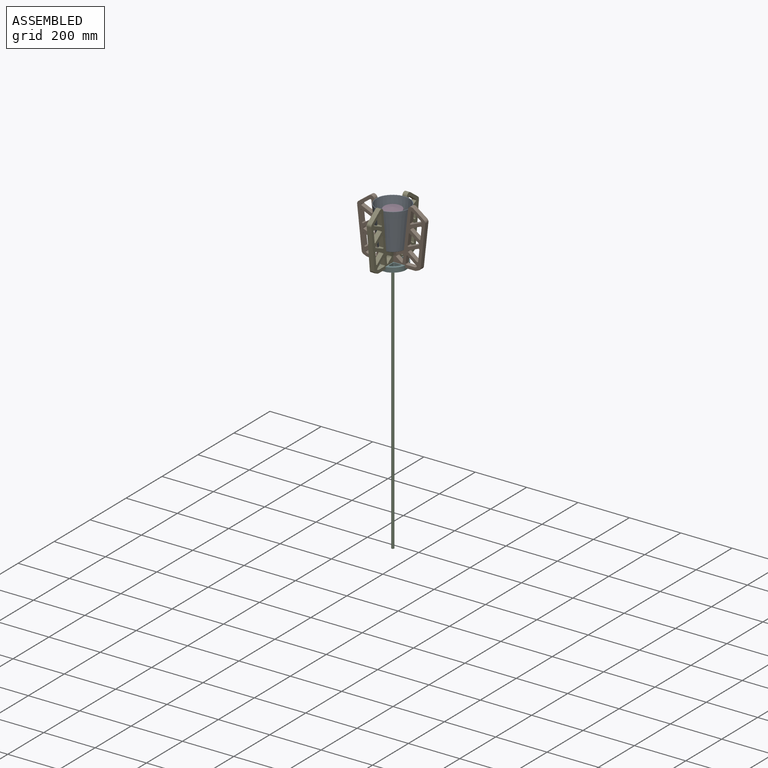
[diagram: assembled view]
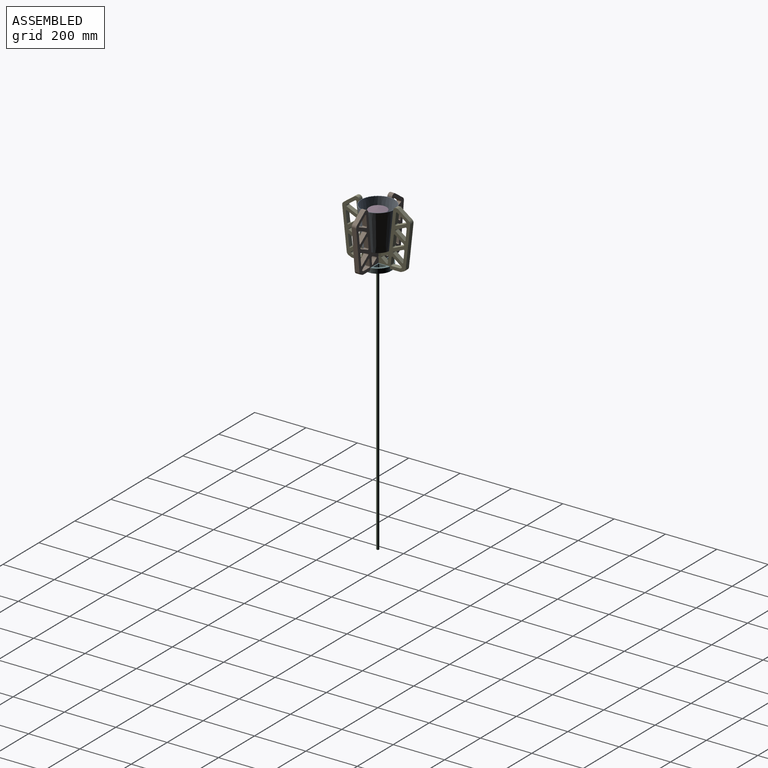
[diagram: assembled view, second angle]
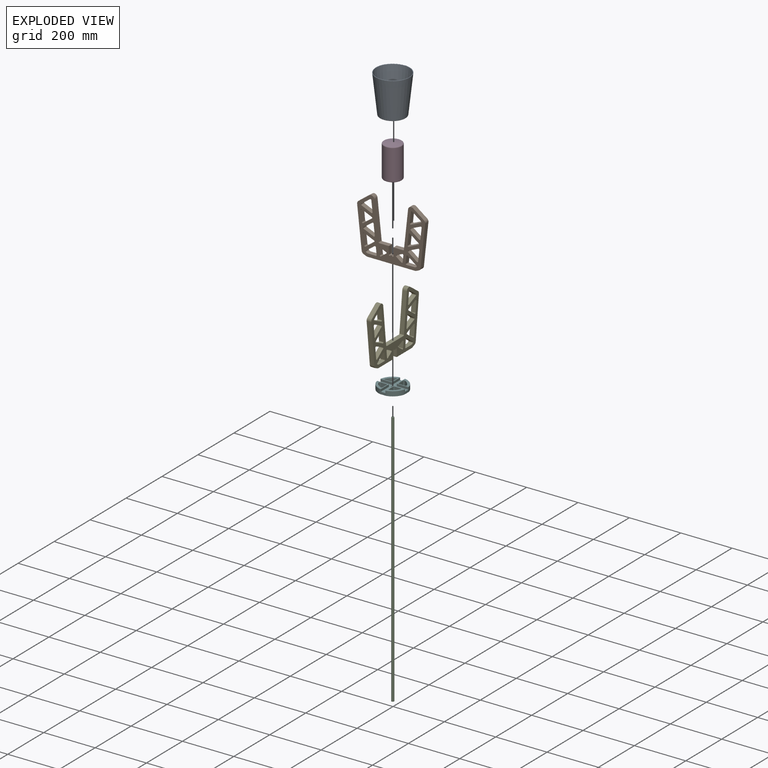
[diagram: exploded view]
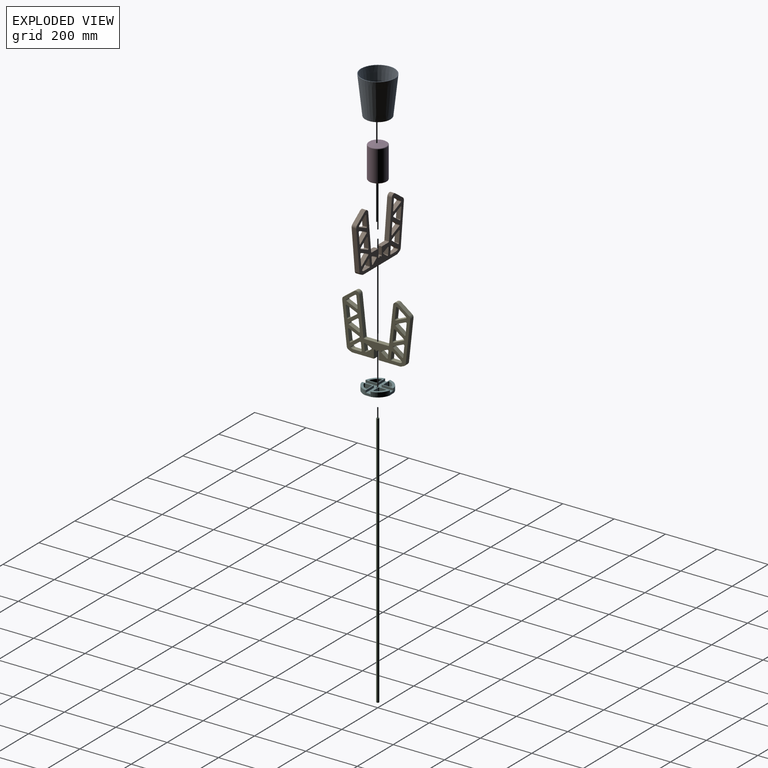
[diagram: exploded view, second angle]
ASSEMBLY  parts=6 mates=8
PART A: 7 faces, bbox 142.5x142.5x149.5 mm
  f0: plane 96.31x96.31mm, normal (0,0,-1), area 7285.3mm2, adj f5
  f1: plane 93.94x93.94mm, normal (0,0,1), area 6930.4mm2, adj f4
  f2: cone r=63.99mm half-angle=6.3deg, axis (0,0,1), area 49618.6mm2, adj f4,f6
  f3: cone r=49.5mm half-angle=6.3deg, axis (0,0,1), area 53679.1mm2, adj f5,f6
  f4: torus R=46.97mm, axis (0,0,-1), area 659.5mm2, adj f1,f2
  f5: torus R=48.16mm, axis (0,0,1), area 675.8mm2, adj f0,f3
  f6: torus R=64.82mm, axis (0,0,-1), area 1280.9mm2, adj f2,f3
PART B: 106 faces, bbox 265.2x18x220.5 mm
  f0: plane 37.23x18mm, normal (0,0,1), area 670.1mm2, adj f1,f27,f96,f101
  f1: plane 265.23x220.48mm, normal (0,-1,0), area 21184.4mm2, adj f0,f2,f3,f4,f5,f6,f7,f8
  f2: plane 41.61x18mm, normal (0.99,0,-0.11), area 753.4mm2, adj f1,f27,f45,f47
  f3: plane 33.75x24.76mm, normal (-0.59,0,-0.81), area 753.4mm2, adj f1,f27,f45,f46
  f4: plane 33.75x24.76mm, normal (0.59,0,0.81), area 753.4mm2, adj f1,f27,f42,f44
  f5: plane 38.32x18mm, normal (0.4,0,-0.92), area 753.4mm2, adj f1,f27,f42,f43
  f6: plane 41.61x18mm, normal (0.99,0,-0.11), area 753.4mm2, adj f1,f27,f39,f41
  f7: plane 33.75x24.76mm, normal (-0.59,0,-0.81), area 753.4mm2, adj f1,f27,f39,f40
  f8: plane 33.75x24.76mm, normal (0.59,0,0.81), area 753.4mm2, adj f1,f27,f36,f38
  f9: plane 38.32x18mm, normal (0.4,0,-0.92), area 753.4mm2, adj f1,f27,f36,f37
  f10: plane 26.8x18mm, normal (0.99,0,-0.11), area 485.3mm2, adj f1,f27,f32,f35
  f11: plane 33.75x24.76mm, normal (-0.59,0,-0.81), area 753.4mm2, adj f1,f27,f32,f33
  f12: plane 18x4.63mm, normal (-0.4,0,0.92), area 91mm2, adj f1,f27,f33,f34
  f13: plane 22.98x18mm, normal (0.4,0,-0.92), area 451.7mm2, adj f1,f27,f28,f30
  f14: plane 24.81x18mm, normal (-0.99,0,0.11), area 449.3mm2, adj f1,f27,f28,f29
  f15: plane 20.25x18mm, normal (0.59,0,0.81), area 452.1mm2, adj f1,f27,f29,f31
  f16: plane 146.68x18mm, normal (-0.99,0,0.11), area 2656.1mm2, adj f1,f27,f48,f52
  f17: plane 37.23x18mm, normal (0,0,1), area 670.1mm2, adj f1,f27,f48,f102
  f18: plane 185.01x18mm, normal (0,0,-1), area 3330.2mm2, adj f1,f27,f49,f97
  f19: plane 18x10.23mm, normal (0.4,0,-0.92), area 201.1mm2, adj f1,f27,f49,f50
  f20: plane 160.4x18mm, normal (0.99,0,-0.11), area 2904.6mm2, adj f1,f27,f50,f51
  f21: plane 41.61x18mm, normal (-0.99,0,0.11), area 753.4mm2, adj f1,f27,f43,f44
  f22: plane 38.32x18mm, normal (-0.4,0,0.92), area 753.4mm2, adj f1,f27,f40,f41
  f23: plane 41.61x18mm, normal (-0.99,0,0.11), area 753.4mm2, adj f1,f27,f37,f38
  f24: plane 32.06x18mm, normal (0,0,1), area 577.1mm2, adj f1,f27,f34,f35
  f25: plane 42.36x31.08mm, normal (0.59,0,0.81), area 945.7mm2, adj f1,f27,f51,f52
  f26: plane 38.32x18mm, normal (-0.4,0,0.92), area 753.4mm2, adj f1,f27,f46,f47
  f27: plane 265.23x220.48mm, normal (0,1,0), area 21184.4mm2, adj f0,f2,f3,f4,f5,f6,f7,f8
  f28: cylinder r=3.25mm len=18mm, axis (0,1,0), area 122.5mm2, adj f1,f13,f14,f27
  f29: cylinder r=3.25mm len=18mm, axis (0,-1,0), area 122.5mm2, adj f1,f14,f15,f27
  f30: cylinder r=3.25mm len=18mm, axis (0,-1,0), area 66.3mm2, adj f1,f13,f27,f31
  f31: cylinder r=3.25mm len=18mm, axis (0,1,0), area 53.5mm2, adj f1,f15,f27,f30
  f32: cylinder r=3.25mm len=18mm, axis (0,-1,0), area 122.5mm2, adj f1,f10,f11,f27
  f33: cylinder r=3.25mm len=18mm, axis (0,-1,0), area 122.5mm2, adj f1,f11,f12,f27
  f34: cylinder r=3.25mm len=18mm, axis (0,-1,0), area 24.2mm2, adj f1,f12,f24,f27
  f35: cylinder r=3.25mm len=18mm, axis (0,-1,0), area 98.3mm2, adj f1,f10,f24,f27
  f36: cylinder r=3.25mm len=18mm, axis (0,-1,0), area 122.5mm2, adj f1,f8,f9,f27
  f37: cylinder r=3.25mm len=18mm, axis (0,-1,0), area 122.5mm2, adj f1,f9,f23,f27
  f38: cylinder r=3.25mm len=18mm, axis (0,-1,0), area 122.5mm2, adj f1,f8,f23,f27
  f39: cylinder r=3.25mm len=18mm, axis (0,-1,0), area 122.5mm2, adj f1,f6,f7,f27
  f40: cylinder r=3.25mm len=18mm, axis (0,-1,0), area 122.5mm2, adj f1,f7,f22,f27
  f41: cylinder r=3.25mm len=18mm, axis (0,-1,0), area 122.5mm2, adj f1,f6,f22,f27
  f42: cylinder r=3.25mm len=18mm, axis (0,-1,0), area 122.5mm2, adj f1,f4,f5,f27
  f43: cylinder r=3.25mm len=18mm, axis (0,-1,0), area 122.5mm2, adj f1,f5,f21,f27
  f44: cylinder r=3.25mm len=18mm, axis (0,-1,0), area 122.5mm2, adj f1,f4,f21,f27
  f45: cylinder r=3.25mm len=18mm, axis (0,-1,0), area 122.5mm2, adj f1,f2,f3,f27
  f46: cylinder r=3.25mm len=18mm, axis (0,-1,0), area 122.5mm2, adj f1,f3,f26,f27
  f47: cylinder r=3.25mm len=18mm, axis (0,-1,0), area 122.5mm2, adj f1,f2,f26,f27
  f48: cylinder r=3.25mm len=18mm, axis (0,-1,0), area 85.5mm2, adj f1,f16,f17,f27
  f49: cylinder r=12.25mm len=18mm, axis (0,1,0), area 91.3mm2, adj f1,f18,f19,f27
  f50: cylinder r=12.25mm len=18mm, axis (0,1,0), area 230.9mm2, adj f1,f19,f20,f27
  f51: cylinder r=12.25mm len=18mm, axis (0,1,0), area 230.9mm2, adj f1,f20,f25,f27
  f52: cylinder r=12.25mm len=19.42mm, axis (0,1,0), area 461.8mm2, adj f1,f16,f25,f27
  f53: plane 41.61x18mm, normal (-0.99,0,-0.11), area 753.4mm2, adj f1,f27,f93,f95
  f54: plane 33.75x24.76mm, normal (0.59,0,-0.81), area 753.4mm2, adj f1,f27,f93,f94
  f55: plane 33.75x24.76mm, normal (-0.59,0,0.81), area 753.4mm2, adj f1,f27,f90,f92
  f56: plane 38.32x18mm, normal (-0.4,0,-0.92), area 753.4mm2, adj f1,f27,f90,f91
  f57: plane 41.61x18mm, normal (-0.99,0,-0.11), area 753.4mm2, adj f1,f27,f87,f89
  f58: plane 33.75x24.76mm, normal (0.59,0,-0.81), area 753.4mm2, adj f1,f27,f87,f88
  f59: plane 33.75x24.76mm, normal (-0.59,0,0.81), area 753.4mm2, adj f1,f27,f84,f86
  f60: plane 38.32x18mm, normal (-0.4,0,-0.92), area 753.4mm2, adj f1,f27,f84,f85
  f61: plane 26.8x18mm, normal (-0.99,0,-0.11), area 485.3mm2, adj f1,f27,f80,f83
  f62: plane 33.75x24.76mm, normal (0.59,0,-0.81), area 753.4mm2, adj f1,f27,f80,f81
  f63: plane 18x4.63mm, normal (0.4,0,0.92), area 91mm2, adj f1,f27,f81,f82
  f64: plane 22.98x18mm, normal (-0.4,0,-0.92), area 451.7mm2, adj f1,f27,f76,f78
  f65: plane 24.81x18mm, normal (0.99,0,0.11), area 449.3mm2, adj f1,f27,f76,f77
  f66: plane 20.25x18mm, normal (-0.59,0,0.81), area 452.1mm2, adj f1,f27,f77,f79
  f67: plane 146.68x18mm, normal (0.99,0,0.11), area 2656.1mm2, adj f1,f27,f96,f100
  f68: plane 18x10.23mm, normal (-0.4,0,-0.92), area 201.1mm2, adj f1,f27,f97,f98
  f69: plane 160.4x18mm, normal (-0.99,0,-0.11), area 2904.6mm2, adj f1,f27,f98,f99
  f70: plane 41.61x18mm, normal (0.99,0,0.11), area 753.4mm2, adj f1,f27,f91,f92
  f71: plane 38.32x18mm, normal (0.4,0,0.92), area 753.4mm2, adj f1,f27,f88,f89
  f72: plane 41.61x18mm, normal (0.99,0,0.11), area 753.4mm2, adj f1,f27,f85,f86
  f73: plane 32.06x18mm, normal (0,0,1), area 577.1mm2, adj f1,f27,f82,f83
  f74: plane 42.36x31.08mm, normal (-0.59,0,0.81), area 945.7mm2, adj f1,f27,f99,f100
  f75: plane 38.32x18mm, normal (0.4,0,0.92), area 753.4mm2, adj f1,f27,f94,f95
  f76: cylinder r=3.25mm len=18mm, axis (0,1,0), area 122.5mm2, adj f1,f27,f64,f65
  f77: cylinder r=3.25mm len=18mm, axis (0,-1,0), area 122.5mm2, adj f1,f27,f65,f66
  f78: cylinder r=3.25mm len=18mm, axis (0,-1,0), area 66.3mm2, adj f1,f27,f64,f79
  f79: cylinder r=3.25mm len=18mm, axis (0,1,0), area 53.5mm2, adj f1,f27,f66,f78
  f80: cylinder r=3.25mm len=18mm, axis (0,-1,0), area 122.5mm2, adj f1,f27,f61,f62
  f81: cylinder r=3.25mm len=18mm, axis (0,-1,0), area 122.5mm2, adj f1,f27,f62,f63
  f82: cylinder r=3.25mm len=18mm, axis (0,-1,0), area 24.2mm2, adj f1,f27,f63,f73
  f83: cylinder r=3.25mm len=18mm, axis (0,-1,0), area 98.3mm2, adj f1,f27,f61,f73
  f84: cylinder r=3.25mm len=18mm, axis (0,-1,0), area 122.5mm2, adj f1,f27,f59,f60
  f85: cylinder r=3.25mm len=18mm, axis (0,-1,0), area 122.5mm2, adj f1,f27,f60,f72
  f86: cylinder r=3.25mm len=18mm, axis (0,-1,0), area 122.5mm2, adj f1,f27,f59,f72
  f87: cylinder r=3.25mm len=18mm, axis (0,-1,0), area 122.5mm2, adj f1,f27,f57,f58
  f88: cylinder r=3.25mm len=18mm, axis (0,-1,0), area 122.5mm2, adj f1,f27,f58,f71
  f89: cylinder r=3.25mm len=18mm, axis (0,-1,0), area 122.5mm2, adj f1,f27,f57,f71
  f90: cylinder r=3.25mm len=18mm, axis (0,-1,0), area 122.5mm2, adj f1,f27,f55,f56
  f91: cylinder r=3.25mm len=18mm, axis (0,-1,0), area 122.5mm2, adj f1,f27,f56,f70
  f92: cylinder r=3.25mm len=18mm, axis (0,-1,0), area 122.5mm2, adj f1,f27,f55,f70
  f93: cylinder r=3.25mm len=18mm, axis (0,-1,0), area 122.5mm2, adj f1,f27,f53,f54
  f94: cylinder r=3.25mm len=18mm, axis (0,-1,0), area 122.5mm2, adj f1,f27,f54,f75
  f95: cylinder r=3.25mm len=18mm, axis (0,-1,0), area 122.5mm2, adj f1,f27,f53,f75
  f96: cylinder r=3.25mm len=18mm, axis (0,-1,0), area 85.5mm2, adj f0,f1,f27,f67
  f97: cylinder r=12.25mm len=18mm, axis (0,1,0), area 91.3mm2, adj f1,f18,f27,f68
  f98: cylinder r=12.25mm len=18mm, axis (0,1,0), area 230.9mm2, adj f1,f27,f68,f69
  f99: cylinder r=12.25mm len=18mm, axis (0,1,0), area 230.9mm2, adj f1,f27,f69,f74
  f100: cylinder r=12.25mm len=19.42mm, axis (0,1,0), area 461.8mm2, adj f1,f27,f67,f74
  f101: plane 30x18mm, normal (1,0,0), area 540mm2, adj f0,f1,f27,f105
  f102: plane 30x18mm, normal (-1,0,0), area 540mm2, adj f1,f17,f27,f103
  f103: cylinder r=3.25mm len=18mm, axis (0,1,0), area 183.8mm2, adj f1,f27,f102,f104
  f104: plane 18x5.5mm, normal (0,0,1), area 99mm2, adj f1,f27,f103,f105
  f105: cylinder r=3.25mm len=18mm, axis (0,1,0), area 183.8mm2, adj f1,f27,f101,f104
PART C: 3 faces, bbox 10x10x1000 mm
  f0: cylinder r=5mm len=1000mm, axis (0,0,1), area 31415.9mm2, adj f1,f2
  f1: plane 10x10mm, normal (0,0,-1), area 78.5mm2, adj f0
  f2: plane 10x10mm, normal (0,0,1), area 78.5mm2, adj f0
PART D: 5 faces, bbox 75.8x75.8x130 mm
  f0: plane 64x64mm, normal (0,0,-1), area 3217mm2, adj f4
  f1: cone r=35mm half-angle=80deg, axis (0,0,-1), area 3373.8mm2, adj f3
  f2: cylinder r=35mm len=118.31mm, axis (0,0,1), area 26018mm2, adj f3,f4
  f3: torus R=32mm, axis (0,0,-1), area 897.9mm2, adj f1,f2
  f4: torus R=32mm, axis (0,0,1), area 1004mm2, adj f0,f2
PART E: 106 faces, bbox 265.2x18x220.5 mm
  f0: plane 83.26x18mm, normal (0,0,-1), area 1498.6mm2, adj f1,f2,f97,f101
  f1: plane 265.23x220.48mm, normal (0,-1,0), area 21184.4mm2, adj f0,f3,f4,f5,f6,f7,f8,f9
  f2: plane 265.23x220.48mm, normal (0,1,0), area 21184.4mm2, adj f0,f3,f4,f5,f6,f7,f8,f9
  f3: plane 41.61x18mm, normal (0.99,0,-0.11), area 753.4mm2, adj f1,f2,f45,f47
  f4: plane 33.75x24.76mm, normal (-0.59,0,-0.81), area 753.4mm2, adj f1,f2,f45,f46
  f5: plane 33.75x24.76mm, normal (0.59,0,0.81), area 753.4mm2, adj f1,f2,f42,f44
  f6: plane 38.32x18mm, normal (0.4,0,-0.92), area 753.4mm2, adj f1,f2,f42,f43
  f7: plane 41.61x18mm, normal (0.99,0,-0.11), area 753.4mm2, adj f1,f2,f39,f41
  f8: plane 33.75x24.76mm, normal (-0.59,0,-0.81), area 753.4mm2, adj f1,f2,f39,f40
  f9: plane 33.75x24.76mm, normal (0.59,0,0.81), area 753.4mm2, adj f1,f2,f36,f38
  f10: plane 38.32x18mm, normal (0.4,0,-0.92), area 753.4mm2, adj f1,f2,f36,f37
  f11: plane 26.8x18mm, normal (0.99,0,-0.11), area 485.3mm2, adj f1,f2,f32,f35
  f12: plane 33.75x24.76mm, normal (-0.59,0,-0.81), area 753.4mm2, adj f1,f2,f32,f33
  f13: plane 18x4.63mm, normal (-0.4,0,0.92), area 91mm2, adj f1,f2,f33,f34
  f14: plane 22.98x18mm, normal (0.4,0,-0.92), area 451.7mm2, adj f1,f2,f28,f30
  f15: plane 24.81x18mm, normal (-0.99,0,0.11), area 449.3mm2, adj f1,f2,f28,f29
  f16: plane 20.25x18mm, normal (0.59,0,0.81), area 452.1mm2, adj f1,f2,f29,f31
  f17: plane 146.68x18mm, normal (-0.99,0,0.11), area 2656.1mm2, adj f1,f2,f48,f52
  f18: plane 92.96x18mm, normal (0,0,1), area 1673.2mm2, adj f1,f2,f48,f96
  f19: plane 83.26x18mm, normal (0,0,-1), area 1498.6mm2, adj f1,f2,f49,f102
  f20: plane 18x10.23mm, normal (0.4,0,-0.92), area 201.1mm2, adj f1,f2,f49,f50
  f21: plane 160.4x18mm, normal (0.99,0,-0.11), area 2904.6mm2, adj f1,f2,f50,f51
  f22: plane 41.61x18mm, normal (-0.99,0,0.11), area 753.4mm2, adj f1,f2,f43,f44
  f23: plane 38.32x18mm, normal (-0.4,0,0.92), area 753.4mm2, adj f1,f2,f40,f41
  f24: plane 41.61x18mm, normal (-0.99,0,0.11), area 753.4mm2, adj f1,f2,f37,f38
  f25: plane 32.06x18mm, normal (0,0,1), area 577.1mm2, adj f1,f2,f34,f35
  f26: plane 42.36x31.08mm, normal (0.59,0,0.81), area 945.7mm2, adj f1,f2,f51,f52
  f27: plane 38.32x18mm, normal (-0.4,0,0.92), area 753.4mm2, adj f1,f2,f46,f47
  f28: cylinder r=3.25mm len=18mm, axis (0,1,0), area 122.5mm2, adj f1,f2,f14,f15
  f29: cylinder r=3.25mm len=18mm, axis (0,-1,0), area 122.5mm2, adj f1,f2,f15,f16
  f30: cylinder r=3.25mm len=18mm, axis (0,-1,0), area 66.3mm2, adj f1,f2,f14,f31
  f31: cylinder r=3.25mm len=18mm, axis (0,1,0), area 53.5mm2, adj f1,f2,f16,f30
  f32: cylinder r=3.25mm len=18mm, axis (0,-1,0), area 122.5mm2, adj f1,f2,f11,f12
  f33: cylinder r=3.25mm len=18mm, axis (0,-1,0), area 122.5mm2, adj f1,f2,f12,f13
  f34: cylinder r=3.25mm len=18mm, axis (0,-1,0), area 24.2mm2, adj f1,f2,f13,f25
  f35: cylinder r=3.25mm len=18mm, axis (0,-1,0), area 98.3mm2, adj f1,f2,f11,f25
  f36: cylinder r=3.25mm len=18mm, axis (0,-1,0), area 122.5mm2, adj f1,f2,f9,f10
  f37: cylinder r=3.25mm len=18mm, axis (0,-1,0), area 122.5mm2, adj f1,f2,f10,f24
  f38: cylinder r=3.25mm len=18mm, axis (0,-1,0), area 122.5mm2, adj f1,f2,f9,f24
  f39: cylinder r=3.25mm len=18mm, axis (0,-1,0), area 122.5mm2, adj f1,f2,f7,f8
  f40: cylinder r=3.25mm len=18mm, axis (0,-1,0), area 122.5mm2, adj f1,f2,f8,f23
  f41: cylinder r=3.25mm len=18mm, axis (0,-1,0), area 122.5mm2, adj f1,f2,f7,f23
  f42: cylinder r=3.25mm len=18mm, axis (0,-1,0), area 122.5mm2, adj f1,f2,f5,f6
  f43: cylinder r=3.25mm len=18mm, axis (0,-1,0), area 122.5mm2, adj f1,f2,f6,f22
  f44: cylinder r=3.25mm len=18mm, axis (0,-1,0), area 122.5mm2, adj f1,f2,f5,f22
  f45: cylinder r=3.25mm len=18mm, axis (0,-1,0), area 122.5mm2, adj f1,f2,f3,f4
  f46: cylinder r=3.25mm len=18mm, axis (0,-1,0), area 122.5mm2, adj f1,f2,f4,f27
  f47: cylinder r=3.25mm len=18mm, axis (0,-1,0), area 122.5mm2, adj f1,f2,f3,f27
  f48: cylinder r=3.25mm len=18mm, axis (0,-1,0), area 85.5mm2, adj f1,f2,f17,f18
  f49: cylinder r=12.25mm len=18mm, axis (0,1,0), area 91.3mm2, adj f1,f2,f19,f20
  f50: cylinder r=12.25mm len=18mm, axis (0,1,0), area 230.9mm2, adj f1,f2,f20,f21
  f51: cylinder r=12.25mm len=18mm, axis (0,1,0), area 230.9mm2, adj f1,f2,f21,f26
  f52: cylinder r=12.25mm len=19.42mm, axis (0,1,0), area 461.8mm2, adj f1,f2,f17,f26
  f53: plane 41.61x18mm, normal (-0.99,0,-0.11), area 753.4mm2, adj f1,f2,f93,f95
  f54: plane 33.75x24.76mm, normal (0.59,0,-0.81), area 753.4mm2, adj f1,f2,f93,f94
  f55: plane 33.75x24.76mm, normal (-0.59,0,0.81), area 753.4mm2, adj f1,f2,f90,f92
  f56: plane 38.32x18mm, normal (-0.4,0,-0.92), area 753.4mm2, adj f1,f2,f90,f91
  f57: plane 41.61x18mm, normal (-0.99,0,-0.11), area 753.4mm2, adj f1,f2,f87,f89
  f58: plane 33.75x24.76mm, normal (0.59,0,-0.81), area 753.4mm2, adj f1,f2,f87,f88
  f59: plane 33.75x24.76mm, normal (-0.59,0,0.81), area 753.4mm2, adj f1,f2,f84,f86
  f60: plane 38.32x18mm, normal (-0.4,0,-0.92), area 753.4mm2, adj f1,f2,f84,f85
  f61: plane 26.8x18mm, normal (-0.99,0,-0.11), area 485.3mm2, adj f1,f2,f80,f83
  f62: plane 33.75x24.76mm, normal (0.59,0,-0.81), area 753.4mm2, adj f1,f2,f80,f81
  f63: plane 18x4.63mm, normal (0.4,0,0.92), area 91mm2, adj f1,f2,f81,f82
  f64: plane 22.98x18mm, normal (-0.4,0,-0.92), area 451.7mm2, adj f1,f2,f76,f78
  f65: plane 24.81x18mm, normal (0.99,0,0.11), area 449.3mm2, adj f1,f2,f76,f77
  f66: plane 20.25x18mm, normal (-0.59,0,0.81), area 452.1mm2, adj f1,f2,f77,f79
  f67: plane 146.68x18mm, normal (0.99,0,0.11), area 2656.1mm2, adj f1,f2,f96,f100
  f68: plane 18x10.23mm, normal (-0.4,0,-0.92), area 201.1mm2, adj f1,f2,f97,f98
  f69: plane 160.4x18mm, normal (-0.99,0,-0.11), area 2904.6mm2, adj f1,f2,f98,f99
  f70: plane 41.61x18mm, normal (0.99,0,0.11), area 753.4mm2, adj f1,f2,f91,f92
  f71: plane 38.32x18mm, normal (0.4,0,0.92), area 753.4mm2, adj f1,f2,f88,f89
  f72: plane 41.61x18mm, normal (0.99,0,0.11), area 753.4mm2, adj f1,f2,f85,f86
  f73: plane 32.06x18mm, normal (0,0,1), area 577.1mm2, adj f1,f2,f82,f83
  f74: plane 42.36x31.08mm, normal (-0.59,0,0.81), area 945.7mm2, adj f1,f2,f99,f100
  f75: plane 38.32x18mm, normal (0.4,0,0.92), area 753.4mm2, adj f1,f2,f94,f95
  f76: cylinder r=3.25mm len=18mm, axis (0,1,0), area 122.5mm2, adj f1,f2,f64,f65
  f77: cylinder r=3.25mm len=18mm, axis (0,-1,0), area 122.5mm2, adj f1,f2,f65,f66
  f78: cylinder r=3.25mm len=18mm, axis (0,-1,0), area 66.3mm2, adj f1,f2,f64,f79
  f79: cylinder r=3.25mm len=18mm, axis (0,1,0), area 53.5mm2, adj f1,f2,f66,f78
  f80: cylinder r=3.25mm len=18mm, axis (0,-1,0), area 122.5mm2, adj f1,f2,f61,f62
  f81: cylinder r=3.25mm len=18mm, axis (0,-1,0), area 122.5mm2, adj f1,f2,f62,f63
  f82: cylinder r=3.25mm len=18mm, axis (0,-1,0), area 24.2mm2, adj f1,f2,f63,f73
  f83: cylinder r=3.25mm len=18mm, axis (0,-1,0), area 98.3mm2, adj f1,f2,f61,f73
  f84: cylinder r=3.25mm len=18mm, axis (0,-1,0), area 122.5mm2, adj f1,f2,f59,f60
  f85: cylinder r=3.25mm len=18mm, axis (0,-1,0), area 122.5mm2, adj f1,f2,f60,f72
  f86: cylinder r=3.25mm len=18mm, axis (0,-1,0), area 122.5mm2, adj f1,f2,f59,f72
  f87: cylinder r=3.25mm len=18mm, axis (0,-1,0), area 122.5mm2, adj f1,f2,f57,f58
  f88: cylinder r=3.25mm len=18mm, axis (0,-1,0), area 122.5mm2, adj f1,f2,f58,f71
  f89: cylinder r=3.25mm len=18mm, axis (0,-1,0), area 122.5mm2, adj f1,f2,f57,f71
  f90: cylinder r=3.25mm len=18mm, axis (0,-1,0), area 122.5mm2, adj f1,f2,f55,f56
  f91: cylinder r=3.25mm len=18mm, axis (0,-1,0), area 122.5mm2, adj f1,f2,f56,f70
  f92: cylinder r=3.25mm len=18mm, axis (0,-1,0), area 122.5mm2, adj f1,f2,f55,f70
  f93: cylinder r=3.25mm len=18mm, axis (0,-1,0), area 122.5mm2, adj f1,f2,f53,f54
  f94: cylinder r=3.25mm len=18mm, axis (0,-1,0), area 122.5mm2, adj f1,f2,f54,f75
  f95: cylinder r=3.25mm len=18mm, axis (0,-1,0), area 122.5mm2, adj f1,f2,f53,f75
  f96: cylinder r=3.25mm len=18mm, axis (0,-1,0), area 85.5mm2, adj f1,f2,f18,f67
  f97: cylinder r=12.25mm len=18mm, axis (0,1,0), area 91.3mm2, adj f0,f1,f2,f68
  f98: cylinder r=12.25mm len=18mm, axis (0,1,0), area 230.9mm2, adj f1,f2,f68,f69
  f99: cylinder r=12.25mm len=18mm, axis (0,1,0), area 230.9mm2, adj f1,f2,f69,f74
  f100: cylinder r=12.25mm len=19.42mm, axis (0,1,0), area 461.8mm2, adj f1,f2,f67,f74
  f101: plane 30x18mm, normal (1,0,0), area 540mm2, adj f0,f1,f2,f105
  f102: plane 30x18mm, normal (-1,0,0), area 540mm2, adj f1,f2,f19,f103
  f103: cylinder r=3.25mm len=18mm, axis (0,-1,0), area 183.8mm2, adj f1,f2,f102,f104
  f104: plane 18x5.5mm, normal (0,0,-1), area 99mm2, adj f1,f2,f103,f105
  f105: cylinder r=3.25mm len=18mm, axis (0,-1,0), area 183.8mm2, adj f1,f2,f101,f104
PART F: 55 faces, bbox 108x108x18 mm
  f0: plane 23.76x18mm, normal (0,1,0), area 265.7mm2, adj f6,f7,f8,f10,f14,f21,f22,f27
  f1: cylinder r=46mm len=26.19mm, axis (0,0,-1), area 686.2mm2, adj f6,f7,f11,f13
  f2: plane 24.34x18mm, normal (-1,0,0), area 438.1mm2, adj f6,f7,f11,f12
  f3: cylinder r=55.37mm len=41.29mm, axis (0,0,-1), area 1107.2mm2, adj f6,f7,f14,f15
  f4: plane 23.76x18mm, normal (-1,0,0), area 265.7mm2, adj f6,f7,f9,f10,f15,f34,f36,f41
  f5: plane 24.34x18mm, normal (0,1,0), area 438.1mm2, adj f6,f7,f12,f13
  f6: plane 45x45mm, normal (0,0,1), area 808.1mm2, adj f0,f1,f2,f3,f4,f5,f8,f9
  f7: plane 108x108mm, normal (0,0,-1), area 6717.7mm2, adj f0,f1,f2,f3,f4,f5,f11,f12
  f8: plane 45x9mm, normal (1,0,0), area 405mm2, adj f0,f6,f9,f10
  f9: plane 45x9mm, normal (0,-1,0), area 405mm2, adj f4,f6,f8,f10
  f10: plane 108x108mm, normal (0,0,1), area 3485.5mm2, adj f0,f4,f8,f9,f19,f22,f23,f29
  f11: cylinder r=3.25mm len=18mm, axis (0,0,-1), area 113.6mm2, adj f1,f2,f6,f7
  f12: cylinder r=3.25mm len=18mm, axis (0,0,-1), area 91.9mm2, adj f2,f5,f6,f7
  f13: cylinder r=3.25mm len=18mm, axis (0,0,-1), area 113.6mm2, adj f1,f5,f6,f7
  f14: cylinder r=3.25mm len=18mm, axis (0,0,-1), area 13.5mm2, adj f0,f3,f6,f7
  f15: cylinder r=3.25mm len=18mm, axis (0,0,-1), area 13.5mm2, adj f3,f4,f6,f7
  f16: cylinder r=46mm len=26.19mm, axis (0,0,-1), area 686.2mm2, adj f7,f21,f24,f26
  f17: plane 24.34x18mm, normal (1,0,0), area 438.1mm2, adj f7,f21,f24,f25
  f18: cylinder r=55.37mm len=41.29mm, axis (0,0,-1), area 1107.2mm2, adj f7,f21,f27,f28
  f19: plane 23.76x18mm, normal (1,0,0), area 265.7mm2, adj f7,f10,f21,f23,f28,f46,f48,f53
  f20: plane 24.34x18mm, normal (0,1,0), area 438.1mm2, adj f7,f21,f25,f26
  f21: plane 45x45mm, normal (0,0,1), area 808.1mm2, adj f0,f16,f17,f18,f19,f20,f22,f23
  f22: plane 45x9mm, normal (-1,0,0), area 405mm2, adj f0,f10,f21,f23
  f23: plane 45x9mm, normal (0,-1,0), area 405mm2, adj f10,f19,f21,f22
  f24: cylinder r=3.25mm len=18mm, axis (0,0,-1), area 113.6mm2, adj f7,f16,f17,f21
  f25: cylinder r=3.25mm len=18mm, axis (0,0,-1), area 91.9mm2, adj f7,f17,f20,f21
  f26: cylinder r=3.25mm len=18mm, axis (0,0,-1), area 113.6mm2, adj f7,f16,f20,f21
  f27: cylinder r=3.25mm len=18mm, axis (0,0,-1), area 13.5mm2, adj f0,f7,f18,f21
  f28: cylinder r=3.25mm len=18mm, axis (0,0,-1), area 13.5mm2, adj f7,f18,f19,f21
  f29: plane 23.76x18mm, normal (0,-1,0), area 265.7mm2, adj f7,f10,f34,f35,f40,f46,f47,f52
  f30: cylinder r=46mm len=26.19mm, axis (0,0,-1), area 686.2mm2, adj f7,f34,f37,f39
  f31: plane 24.34x18mm, normal (-1,0,0), area 438.1mm2, adj f7,f34,f37,f38
  f32: cylinder r=55.37mm len=41.29mm, axis (0,0,-1), area 1107.2mm2, adj f7,f34,f40,f41
  f33: plane 24.34x18mm, normal (0,-1,0), area 438.1mm2, adj f7,f34,f38,f39
  f34: plane 45x45mm, normal (0,0,1), area 808.1mm2, adj f4,f29,f30,f31,f32,f33,f35,f36
  f35: plane 45x9mm, normal (1,0,0), area 405mm2, adj f10,f29,f34,f36
  f36: plane 45x9mm, normal (0,1,0), area 405mm2, adj f4,f10,f34,f35
  f37: cylinder r=3.25mm len=18mm, axis (0,0,-1), area 113.6mm2, adj f7,f30,f31,f34
  f38: cylinder r=3.25mm len=18mm, axis (0,0,-1), area 91.9mm2, adj f7,f31,f33,f34
  f39: cylinder r=3.25mm len=18mm, axis (0,0,-1), area 113.6mm2, adj f7,f30,f33,f34
  f40: cylinder r=3.25mm len=18mm, axis (0,0,-1), area 13.5mm2, adj f7,f29,f32,f34
  f41: cylinder r=3.25mm len=18mm, axis (0,0,-1), area 13.5mm2, adj f4,f7,f32,f34
  f42: cylinder r=46mm len=26.19mm, axis (0,0,-1), area 686.2mm2, adj f7,f46,f49,f51
  f43: plane 24.34x18mm, normal (1,0,0), area 438.1mm2, adj f7,f46,f49,f50
  f44: cylinder r=55.37mm len=41.29mm, axis (0,0,-1), area 1107.2mm2, adj f7,f46,f52,f53
  f45: plane 24.34x18mm, normal (0,-1,0), area 438.1mm2, adj f7,f46,f50,f51
  f46: plane 45x45mm, normal (0,0,1), area 808.1mm2, adj f19,f29,f42,f43,f44,f45,f47,f48
  f47: plane 45x9mm, normal (-1,0,0), area 405mm2, adj f10,f29,f46,f48
  f48: plane 45x9mm, normal (0,1,0), area 405mm2, adj f10,f19,f46,f47
  f49: cylinder r=3.25mm len=18mm, axis (0,0,-1), area 113.6mm2, adj f7,f42,f43,f46
  f50: cylinder r=3.25mm len=18mm, axis (0,0,-1), area 91.9mm2, adj f7,f43,f45,f46
  f51: cylinder r=3.25mm len=18mm, axis (0,0,-1), area 113.6mm2, adj f7,f42,f45,f46
  f52: cylinder r=3.25mm len=18mm, axis (0,0,-1), area 13.5mm2, adj f7,f29,f44,f46
  f53: cylinder r=3.25mm len=18mm, axis (0,0,-1), area 13.5mm2, adj f7,f19,f44,f46
  f54: cylinder r=5mm len=10mm, axis (0,0,-1), area 282.7mm2, adj f7,f10
PLACE A t=(-0.79,-0.09,-10.83)mm
PLACE B t=(-0.54,-0.34,-70.83)mm fixed
PLACE C t=(-0.54,-0.34,-75.33)mm
PLACE D t=(-0.79,-0.09,-3.33)mm
PLACE E rot(axis=(0,0,1),90deg) t=(-0.79,-0.09,-70.83)mm
PLACE F t=(-0.54,-0.34,-70.83)mm
MATE revolute F.f54 <-> B.f18  axis (0,0,-1) through (-0.54,-0.34,-70.83)mm
MATE planar B.f1 <-> F.f36  axis (0,-1,0) through (-0.54,-9.34,18.55)mm
MATE planar E.f2 <-> B.f101  axis (-1,0,0) through (-9.79,-0.09,19.33)mm
MATE revolute A.f2 <-> E.f18  axis (0,0,-1) through (-0.79,-0.09,-10.83)mm
MATE revolute C.f0 <-> F.f54  axis (0,0,1) through (-0.54,-0.34,-75.33)mm
MATE revolute D.f1 <-> A.f2  axis (0,0,-1) through (-0.79,-0.09,-3.33)mm
MATE planar E.f104 <-> B.f104  axis (0,0,-1) through (-0.79,-0.09,-40.83)mm
MATE planar B.f1 <-> E.f101  axis (0,-1,0) through (-0.54,-9.34,18.55)mm
